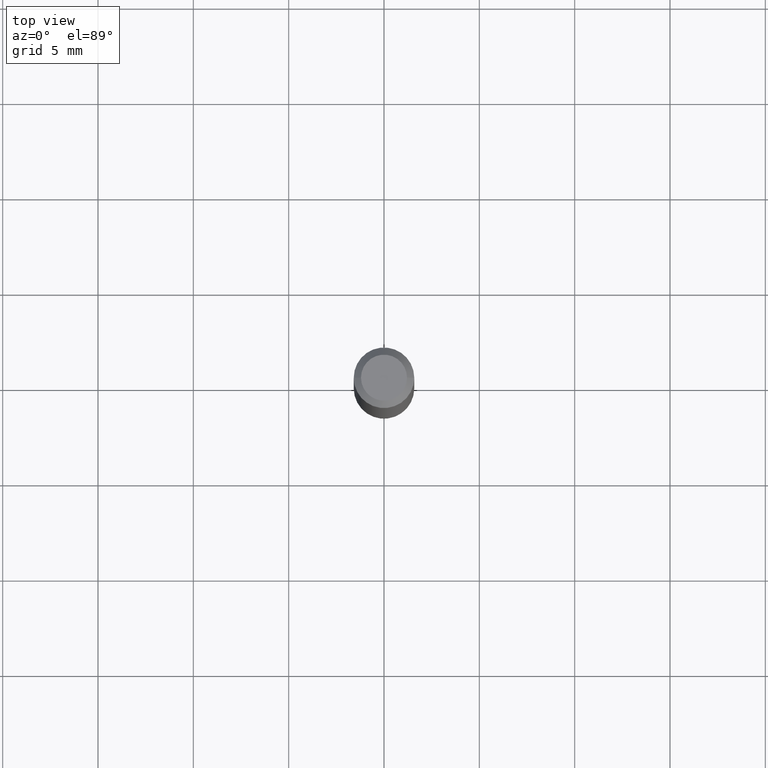
[diagram: clean part render]
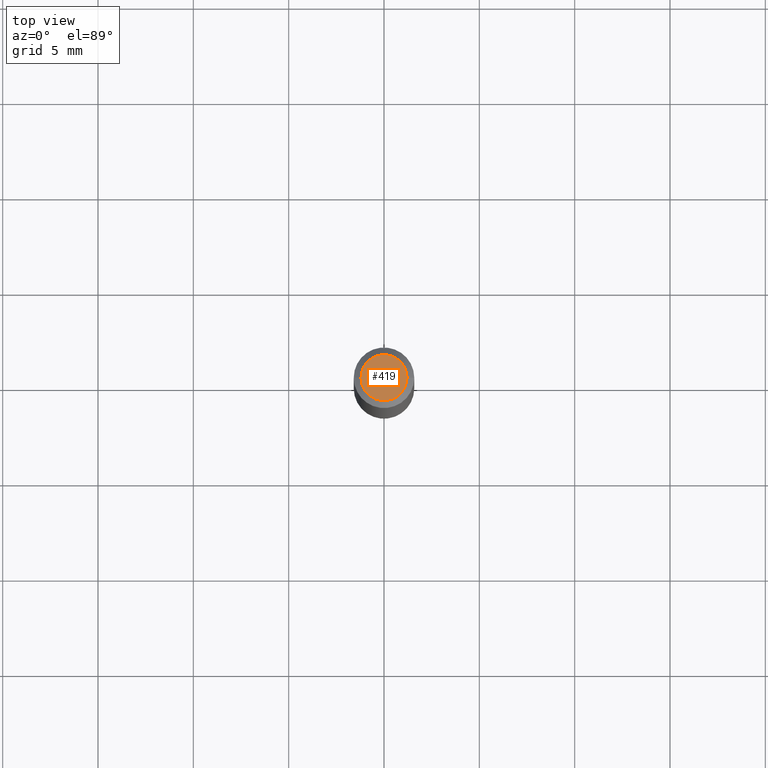
[diagram: same view with one face highlighted and labeled with its STEP entity id]
A machine part, top view. The second image highlights one B-rep face of the part: STEP entity #419.
In plain terms, the highlighted planar face has unit normal (0, -0, -1).
Its self-contained STEP definition (entity closure, byte-faithful):
#50 = FACE_OUTER_BOUND ( 'NONE', #287, .T. ) ;
#57 = DIRECTION ( 'NONE',  ( -2.445468806185136597E-29, 3.491481338843145583E-15, 1.000000000000000000 ) ) ;
#64 = EDGE_CURVE ( 'NONE', #312, #357, #223, .T. ) ;
#80 = CARTESIAN_POINT ( 'NONE',  ( -0.04749999999999999362, 3.578768372314200645E-16, -5.475136966724983420E-16 ) ) ;
#102 = DIRECTION ( 'NONE',  ( -2.445468806185136597E-29, 3.491481338843145583E-15, 1.000000000000000000 ) ) ;
#147 = CARTESIAN_POINT ( 'NONE',  ( 0.04749999999999999362, -4.035134999187587991E-16, -5.475136966724933130E-16 ) ) ;
#154 = CARTESIAN_POINT ( 'NONE',  ( 3.316907271900976096E-16, 0.04749999999999999362, -4.396022119312973841E-16 ) ) ;
#192 = DIRECTION ( 'NONE',  ( 2.438088387897960049E-29, -3.491481338843145188E-15, -1.000000000000000000 ) ) ;
#209 = CIRCLE ( 'NONE', #386, 0.04749999999999999362 ) ;
#213 = ORIENTED_EDGE ( 'NONE', *, *, #318, .T. ) ;
#223 = CIRCLE ( 'NONE', #250, 0.04749999999999999362 ) ;
#237 = CARTESIAN_POINT ( 'NONE',  ( 1.338927666171699620E-44, -1.911633854693045944E-30, -5.475136966724958768E-16 ) ) ;
#250 = AXIS2_PLACEMENT_3D ( 'NONE', #237, #102, #428 ) ;
#270 = AXIS2_PLACEMENT_3D ( 'NONE', #154, #192, #408 ) ;
#287 = EDGE_LOOP ( 'NONE', ( #213, #466 ) ) ;
#312 = VERTEX_POINT ( 'NONE', #147 ) ;
#315 = CARTESIAN_POINT ( 'NONE',  ( 1.338927666171699620E-44, -1.911633854693045944E-30, -5.475136966724958768E-16 ) ) ;
#318 = EDGE_CURVE ( 'NONE', #357, #312, #209, .T. ) ;
#350 = DIRECTION ( 'NONE',  ( 1.000000000000000000, -6.982962677686267499E-15, 4.852736867747366768E-29 ) ) ;
#357 = VERTEX_POINT ( 'NONE', #80 ) ;
#386 = AXIS2_PLACEMENT_3D ( 'NONE', #315, #57, #350 ) ;
#408 = DIRECTION ( 'NONE',  ( -1.000000000000000000, 6.982962677686265922E-15, -4.876176775795935793E-29 ) ) ;
#419 = ADVANCED_FACE ( 'NONE', ( #50 ), #443, .F. ) ;
#428 = DIRECTION ( 'NONE',  ( 1.000000000000000000, -6.982962677686267499E-15, 4.852736867747366768E-29 ) ) ;
#443 = PLANE ( 'NONE',  #270 ) ;
#466 = ORIENTED_EDGE ( 'NONE', *, *, #64, .T. ) ;